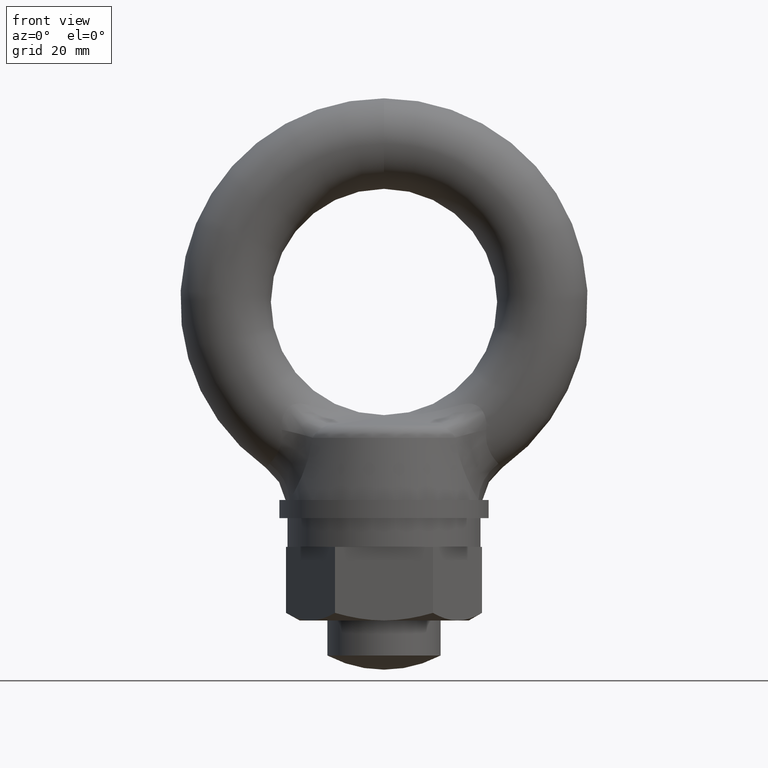
[diagram: clean part render]
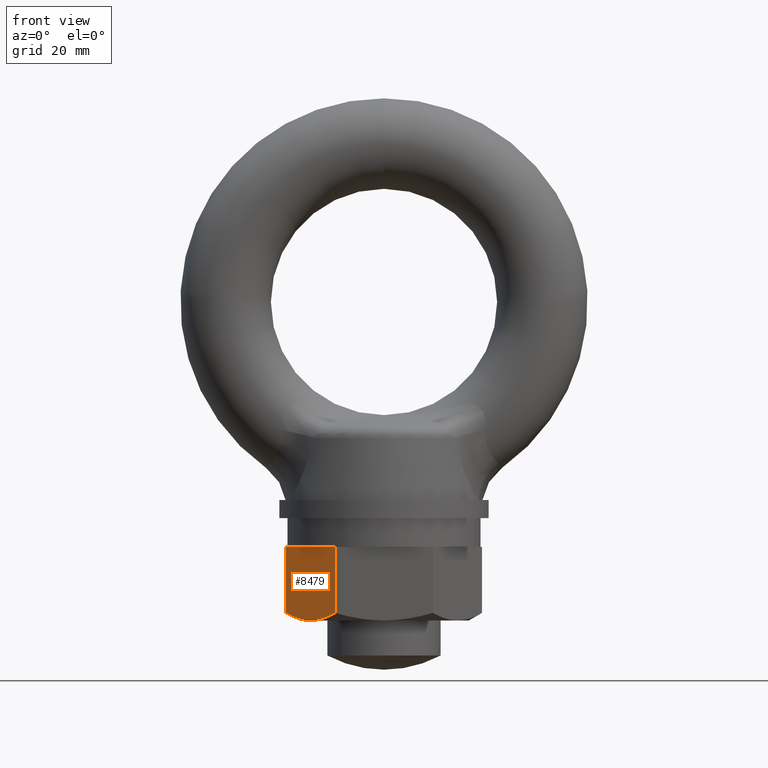
[diagram: same view with one face highlighted and labeled with its STEP entity id]
A machine part, front view. The second image highlights one B-rep face of the part: STEP entity #8479.
In plain terms, the highlighted planar face has unit normal (0.866, 0.5, 0).
Its self-contained STEP definition (entity closure, byte-faithful):
#6857 = CARTESIAN_POINT ( 'NONE',  ( -17.32050900000000100, 1.096162151108375900E-015, -54.96025650419309700 ) ) ;
#6858 = CARTESIAN_POINT ( 'NONE',  ( -16.61392576417441800, -1.223837928257742700, -55.36820252560203000 ) ) ;
#6859 = CARTESIAN_POINT ( 'NONE',  ( -15.90144742230583600, -2.457886478563569500, -55.70496989930615700 ) ) ;
#6860 = CARTESIAN_POINT ( 'NONE',  ( -14.81988494306981100, -4.331207436034268300, -56.05502835697175400 ) ) ;
#6861 = CARTESIAN_POINT ( 'NONE',  ( -14.45721702314277700, -4.959366629834631700, -56.14579008818820000 ) ) ;
#6862 = CARTESIAN_POINT ( 'NONE',  ( -13.72699660571175800, -6.224145353032194600, -56.26833621857643700 ) ) ;
#6863 = CARTESIAN_POINT ( 'NONE',  ( -13.35786436503229000, -6.863501077568260600, -56.30000277748286700 ) ) ;
#6864 = CARTESIAN_POINT ( 'NONE',  ( -12.99038069595821900, -7.500000624938359700, -56.30000300000009600 ) ) ;
#6885 = B_SPLINE_CURVE_WITH_KNOTS ( 'NONE', 3,
 ( #6864, #6863, #6862, #6861, #6860, #6859, #6858, #6857 ),
 .UNSPECIFIED., .F., .F.,
 ( 4, 2, 2, 4 ),
 ( 0.008762995916422558500, 0.01094549400397555600, 0.01312799209152855400, 0.01749298826663455600 ),
 .UNSPECIFIED. ) ;
#6886 = CARTESIAN_POINT ( 'NONE',  ( -17.32050900000000100, 1.096162151108375900E-015, -54.96025650419309700 ) ) ;
#6887 = DIRECTION ( 'NONE',  ( 0.0000000000000000000, 0.0000000000000000000, -1.000000000000000000 ) ) ;
#6888 = VECTOR ( 'NONE', #6887, 1000.000000000000000 ) ;
#6889 = CARTESIAN_POINT ( 'NONE',  ( -17.32050900000000100, 0.0000000000000000000, 943.6999969999999400 ) ) ;
#6890 = LINE ( 'NONE', #6889, #6888 ) ;
#6891 = CARTESIAN_POINT ( 'NONE',  ( -17.32050900000000100, 0.0000000000000000000, -43.29999900000014900 ) ) ;
#6892 = CARTESIAN_POINT ( 'NONE',  ( -8.660253999999998300, -15.00000000000000000, -43.29999900000014900 ) ) ;
#7355 = DIRECTION ( 'NONE',  ( 0.0000000000000000000, 0.0000000000000000000, -1.000000000000000000 ) ) ;
#7356 = VECTOR ( 'NONE', #7355, 1000.000000000000000 ) ;
#7357 = CARTESIAN_POINT ( 'NONE',  ( -8.660253999999998300, -15.00000000000000000, 943.6999969999999400 ) ) ;
#7358 = LINE ( 'NONE', #7357, #7356 ) ;
#7359 = FACE_OUTER_BOUND ( 'NONE', #8480, .T. ) ;
#7360 = CARTESIAN_POINT ( 'NONE',  ( -8.660253999999998300, -15.00000000000000000, -54.96025704876919300 ) ) ;
#7361 = B_SPLINE_CURVE_WITH_KNOTS ( 'NONE', 3,
 ( #7430, #7455, #7454, #7453, #7452, #7510 ),
 .UNSPECIFIED., .F., .F.,
 ( 4, 2, 4 ),
 ( 2.380728901306220500E-007, 0.004381616994656343900, 0.008762995916422558500 ),
 .UNSPECIFIED. ) ;
#7426 = DIRECTION ( 'NONE',  ( -0.5000000416625577400, 0.8660253797305484900, 0.0000000000000000000 ) ) ;
#7427 = DIRECTION ( 'NONE',  ( 0.8660253797305484900, 0.5000000416625577400, 0.0000000000000000000 ) ) ;
#7428 = AXIS2_PLACEMENT_3D ( 'NONE', #7511, #7427, #7426 ) ;
#7430 = CARTESIAN_POINT ( 'NONE',  ( -8.660253999999998300, -15.00000000000000000, -54.96025704876919300 ) ) ;
#7431 = CARTESIAN_POINT ( 'NONE',  ( -12.99038069595821900, -7.500000624938359700, -56.30000300000009600 ) ) ;
#7452 = CARTESIAN_POINT ( 'NONE',  ( -12.25265591879470700, -8.777778046729524800, -56.30000278019127800 ) ) ;
#7453 = CARTESIAN_POINT ( 'NONE',  ( -11.52410142196416100, -10.03967131112626500, -56.17231792276339100 ) ) ;
#7454 = CARTESIAN_POINT ( 'NONE',  ( -10.08213228077249800, -12.53723484913699300, -55.70615241626605800 ) ) ;
#7455 = CARTESIAN_POINT ( 'NONE',  ( -9.368606131570551600, -13.77309825477910900, -55.36922427579862200 ) ) ;
#7467 = PLANE ( 'NONE',  #7428 ) ;
#7510 = CARTESIAN_POINT ( 'NONE',  ( -12.99038069595821900, -7.500000624938359700, -56.30000300000009600 ) ) ;
#7511 = CARTESIAN_POINT ( 'NONE',  ( -17.32050900000000100, 0.0000000000000000000, 943.6999969999999400 ) ) ;
#7515 = DIRECTION ( 'NONE',  ( 0.5000000416625576300, -0.8660253797305483800, 0.0000000000000000000 ) ) ;
#7516 = VECTOR ( 'NONE', #7515, 1000.000000000000200 ) ;
#7517 = CARTESIAN_POINT ( 'NONE',  ( -17.32050900000000100, 0.0000000000000000000, -43.29999900000014900 ) ) ;
#7518 = LINE ( 'NONE', #7517, #7516 ) ;
#8330 = ORIENTED_EDGE ( 'NONE', *, *, #8381, .F. ) ;
#8335 = VERTEX_POINT ( 'NONE', #6892 ) ;
#8336 = VERTEX_POINT ( 'NONE', #6891 ) ;
#8337 = ORIENTED_EDGE ( 'NONE', *, *, #8338, .T. ) ;
#8338 = EDGE_CURVE ( 'NONE', #8336, #8339, #6890, .T. ) ;
#8339 = VERTEX_POINT ( 'NONE', #6886 ) ;
#8340 = ORIENTED_EDGE ( 'NONE', *, *, #8341, .F. ) ;
#8341 = EDGE_CURVE ( 'NONE', #8484, #8339, #6885, .T. ) ;
#8381 = EDGE_CURVE ( 'NONE', #8335, #8482, #7358, .T. ) ;
#8479 = ADVANCED_FACE ( 'NONE', ( #7359 ), #7467, .F. ) ;
#8480 = EDGE_LOOP ( 'NONE', ( #8483, #8330, #8669, #8337, #8340 ) ) ;
#8481 = EDGE_CURVE ( 'NONE', #8482, #8484, #7361, .T. ) ;
#8482 = VERTEX_POINT ( 'NONE', #7360 ) ;
#8483 = ORIENTED_EDGE ( 'NONE', *, *, #8481, .F. ) ;
#8484 = VERTEX_POINT ( 'NONE', #7431 ) ;
#8669 = ORIENTED_EDGE ( 'NONE', *, *, #8670, .F. ) ;
#8670 = EDGE_CURVE ( 'NONE', #8336, #8335, #7518, .T. ) ;